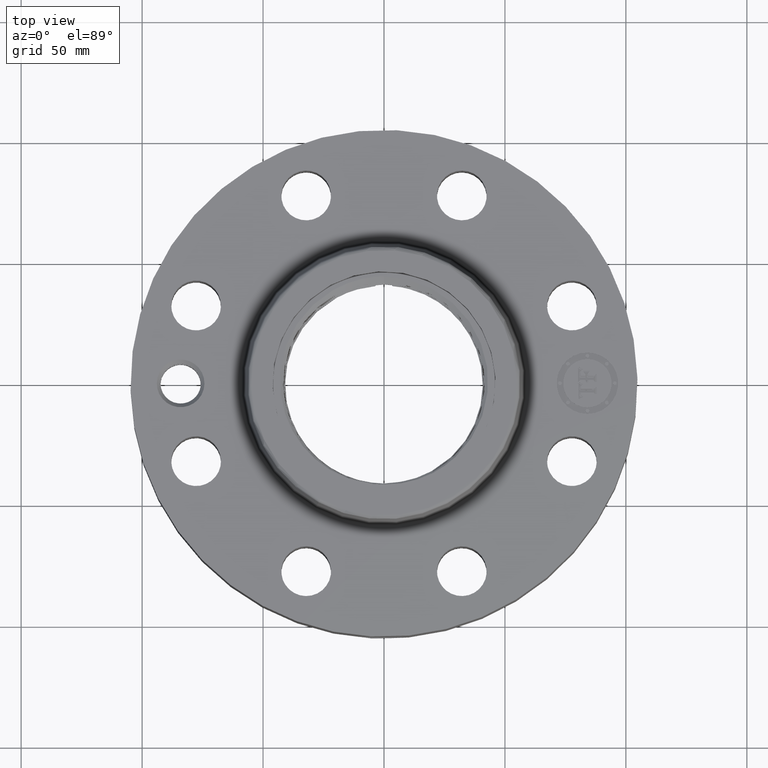
[diagram: clean part render]
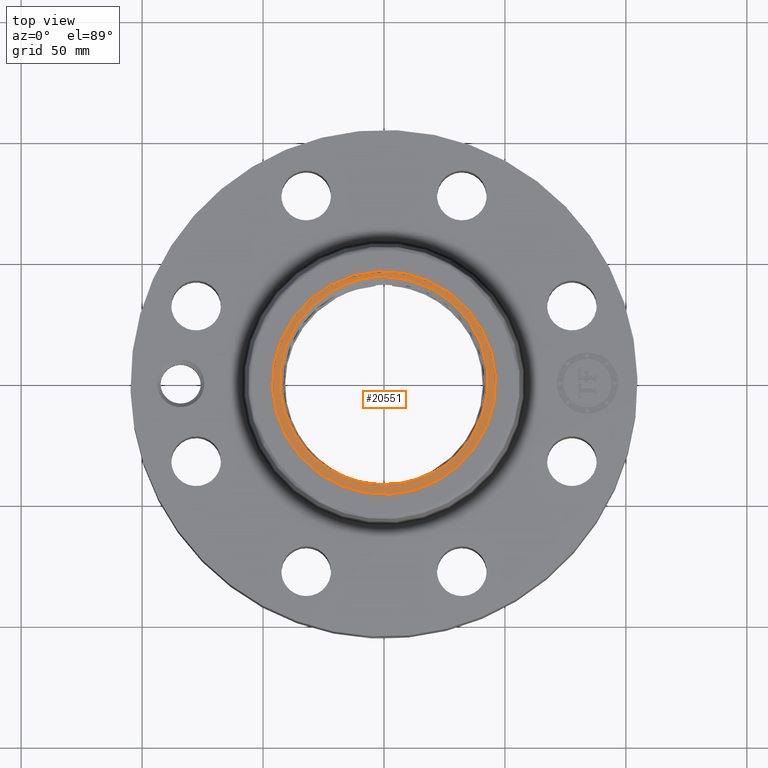
[diagram: same view with one face highlighted and labeled with its STEP entity id]
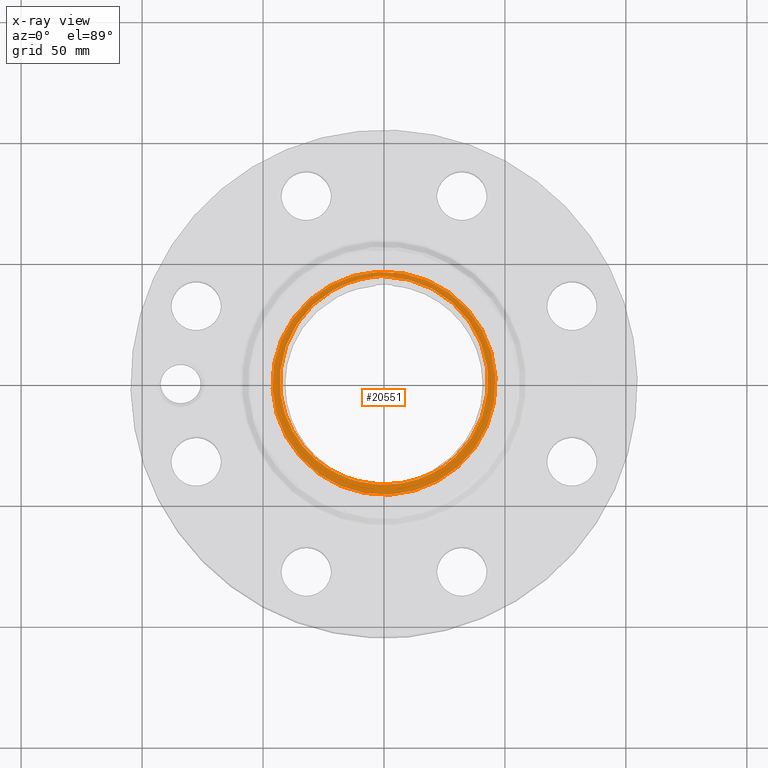
[diagram: x-ray of the same camera — body ghosted, the highlighted face saturated]
A machine part, top view. The second image highlights one B-rep face of the part: STEP entity #20551.
The next image is the same camera in x-ray: the body ghosted, the highlighted face saturated — about 0% of this face is hidden behind the body in this view.
In plain terms, the highlighted planar face has unit normal (0, 0, 1).
Its self-contained STEP definition (entity closure, byte-faithful):
#16266=AXIS2_PLACEMENT_3D('Circle Axis2P3D',#16264,#16265,$) ;
#20483=AXIS2_PLACEMENT_3D('Plane Axis2P3D',#20480,#20481,#20482) ;
#20487=AXIS2_PLACEMENT_3D('Circle Axis2P3D',#20485,#20486,$) ;
#20496=AXIS2_PLACEMENT_3D('Circle Axis2P3D',#20494,#20495,$) ;
#16264=CARTESIAN_POINT('Axis2P3D Location',(0.,0.,1.81000000001)) ;
#16268=CARTESIAN_POINT('Vertex',(-0.194961963049,-1.63393586044,1.81)) ;
#16270=CARTESIAN_POINT('Vertex',(-0.0561136197706,-1.64456919123,1.81000000001)) ;
#16362=CARTESIAN_POINT('Vertex',(-0.829470934367,1.51833945289,1.81000000001)) ;
#16378=CARTESIAN_POINT('Vertex',(-0.13678722871,1.73890267564,1.81000000001)) ;
#16382=CARTESIAN_POINT('Control Point',(-0.13678722871,1.73890267564,1.81000000001)) ;
#16383=CARTESIAN_POINT('Control Point',(-0.319371309236,1.72100230878,1.81000000001)) ;
#16384=CARTESIAN_POINT('Control Point',(-0.499217006857,1.6775120228,1.81000000206)) ;
#16385=CARTESIAN_POINT('Control Point',(-0.670847050204,1.60903129027,1.81000000001)) ;
#16386=CARTESIAN_POINT('Control Point',(-0.829470934367,1.51833945289,1.81000000001)) ;
#16449=CARTESIAN_POINT('Vertex',(0.796675761675,-1.4583093642,1.81000000001)) ;
#16455=CARTESIAN_POINT('Vertex',(-2.22400058097E-006,-1.6465611539,1.81000000001)) ;
#16459=CARTESIAN_POINT('Control Point',(0.796675761675,-1.4583093642,1.81000000001)) ;
#16460=CARTESIAN_POINT('Control Point',(0.612988326037,-1.55434561901,1.81000000001)) ;
#16461=CARTESIAN_POINT('Control Point',(0.413568492538,-1.6196915647,1.8100000001)) ;
#16462=CARTESIAN_POINT('Control Point',(0.206289476697,-1.65036322685,1.81000000001)) ;
#16463=CARTESIAN_POINT('Control Point',(-2.22400058097E-006,-1.6465611539,1.81000000001)) ;
#16492=CARTESIAN_POINT('Control Point',(-2.224000579E-006,-1.6465611539,1.81000000001)) ;
#16493=CARTESIAN_POINT('Control Point',(-0.0187181004689,-1.64621620969,1.81000000001)) ;
#16494=CARTESIAN_POINT('Control Point',(-0.0374264603945,-1.64555202021,1.81000000001)) ;
#16495=CARTESIAN_POINT('Control Point',(-0.056113619005,-1.64456919264,1.81000000001)) ;
#20458=CARTESIAN_POINT('Control Point',(-0.829470934367,1.51833945289,1.81000000001)) ;
#20459=CARTESIAN_POINT('Control Point',(-1.06639031619,1.38288284057,1.81000000001)) ;
#20460=CARTESIAN_POINT('Control Point',(-1.2761445505,1.20096168998,1.81000000001)) ;
#20461=CARTESIAN_POINT('Control Point',(-1.44642698033,0.979733273924,1.81000000001)) ;
#20462=CARTESIAN_POINT('Control Point',(-1.65174050857,0.560494746642,1.81000000001)) ;
#20463=CARTESIAN_POINT('Control Point',(-1.70852808829,0.103336645492,1.81000000001)) ;
#20464=CARTESIAN_POINT('Control Point',(-1.70583983878,-0.0847126953077,1.81000000001)) ;
#20465=CARTESIAN_POINT('Control Point',(-1.65684462365,-0.404237197603,1.81000000001)) ;
#20466=CARTESIAN_POINT('Control Point',(-1.53542121015,-0.701241256711,1.81000000001)) ;
#20467=CARTESIAN_POINT('Control Point',(-1.47193828024,-0.820690122916,1.81)) ;
#20468=CARTESIAN_POINT('Control Point',(-1.25126506793,-1.15106605528,1.81000000001)) ;
#20469=CARTESIAN_POINT('Control Point',(-0.9413522449,-1.40639267928,1.81)) ;
#20470=CARTESIAN_POINT('Control Point',(-0.706153688775,-1.53223738599,1.8100000002)) ;
#20471=CARTESIAN_POINT('Control Point',(-0.452848193671,-1.60848913925,1.81000000003)) ;
#20472=CARTESIAN_POINT('Control Point',(-0.194961961606,-1.63393588575,1.81000000001)) ;
#20480=CARTESIAN_POINT('Axis2P3D Location',(7.36069123413E-016,-4.96540691328E-016,1.81000000001)) ;
#20485=CARTESIAN_POINT('Axis2P3D Location',(0.,0.,1.81000000001)) ;
#20489=CARTESIAN_POINT('Vertex',(-0.87015735257,1.59281234984,1.81000000001)) ;
#20491=CARTESIAN_POINT('Vertex',(0.87015735257,-1.59281234984,1.81000000001)) ;
#20494=CARTESIAN_POINT('Axis2P3D Location',(0.,0.,1.81000000001)) ;
#20504=CARTESIAN_POINT('Control Point',(-0.13678722871,1.73890267564,1.81000000001)) ;
#20505=CARTESIAN_POINT('Control Point',(-0.109458202439,1.7405747304,1.81000000001)) ;
#20506=CARTESIAN_POINT('Control Point',(-0.0821007535331,1.74171019988,1.81000000001)) ;
#20507=CARTESIAN_POINT('Control Point',(-0.0547289307574,1.74230832592,1.81000000001)) ;
#20508=CARTESIAN_POINT('Control Point',(-0.0273568229636,1.74236890253,1.81000000001)) ;
#20509=CARTESIAN_POINT('Control Point',(1.47383328783E-006,1.74189228094,1.81000000001)) ;
#20510=CARTESIAN_POINT('Vertex',(1.47383328792E-006,1.74189228094,1.81000000001)) ;
#20514=CARTESIAN_POINT('Control Point',(1.47383328796E-006,1.74189228094,1.81000000001)) ;
#20515=CARTESIAN_POINT('Control Point',(0.136920631268,1.73950694874,1.81000000001)) ;
#20516=CARTESIAN_POINT('Control Point',(0.273493776678,1.72366654045,1.81000000001)) ;
#20517=CARTESIAN_POINT('Control Point',(0.407916061021,1.69442464961,1.81000000001)) ;
#20518=CARTESIAN_POINT('Control Point',(0.66904848855,1.60992354919,1.81000000001)) ;
#20519=CARTESIAN_POINT('Control Point',(0.908110467543,1.47634479062,1.81000000001)) ;
#20520=CARTESIAN_POINT('Control Point',(1.02056623263,1.39797639224,1.81000000001)) ;
#20521=CARTESIAN_POINT('Control Point',(1.22835449747,1.22021097323,1.81000000001)) ;
#20522=CARTESIAN_POINT('Control Point',(1.39698893523,1.00557372318,1.81000000001)) ;
#20523=CARTESIAN_POINT('Control Point',(1.47032957825,0.890288333666,1.81000000001)) ;
#20524=CARTESIAN_POINT('Control Point',(1.59302962829,0.647002829865,1.81000000001)) ;
#20525=CARTESIAN_POINT('Control Point',(1.66539294493,0.384673686553,1.81000000001)) ;
#20526=CARTESIAN_POINT('Control Point',(1.68834854283,0.250460648103,1.81000000001)) ;
#20527=CARTESIAN_POINT('Control Point',(1.70131672213,0.0641377390592,1.81000000001)) ;
#20528=CARTESIAN_POINT('Control Point',(1.68884093805,-0.121274440494,1.81000000001)) ;
#20529=CARTESIAN_POINT('Control Point',(1.68355250931,-0.171653828551,1.81000000001)) ;
#20530=CARTESIAN_POINT('Control Point',(1.66683566131,-0.288580432947,1.81000000001)) ;
#20531=CARTESIAN_POINT('Control Point',(1.63999666546,-0.403586111194,1.81000000001)) ;
#20532=CARTESIAN_POINT('Control Point',(1.62139791972,-0.46844693772,1.81000000001)) ;
#20533=CARTESIAN_POINT('Control Point',(1.55601180478,-0.659816999175,1.81000000001)) ;
#20534=CARTESIAN_POINT('Control Point',(1.46260830676,-0.839719880352,1.81000000001)) ;
#20535=CARTESIAN_POINT('Control Point',(1.38856391158,-0.952902964194,1.81000000001)) ;
#20536=CARTESIAN_POINT('Control Point',(1.23849429005,-1.13854877215,1.81000000001)) ;
#20537=CARTESIAN_POINT('Control Point',(1.05872028593,-1.29430962794,1.81000000001)) ;
#20538=CARTESIAN_POINT('Control Point',(0.975492433996,-1.35582367301,1.81000000001)) ;
#20539=CARTESIAN_POINT('Control Point',(0.887898752777,-1.41061576774,1.81000000001)) ;
#20540=CARTESIAN_POINT('Control Point',(0.796675761675,-1.4583093642,1.81000000001)) ;
#16265=DIRECTION('Axis2P3D Direction',(0.,0.,0.0393700787402)) ;
#20481=DIRECTION('Axis2P3D Direction',(0.,0.,0.0393700787402)) ;
#20482=DIRECTION('Axis2P3D XDirection',(0.0393700787402,0.,0.)) ;
#20486=DIRECTION('Axis2P3D Direction',(0.,0.,0.0393700787402)) ;
#20495=DIRECTION('Axis2P3D Direction',(0.,0.,0.0393700787402)) ;
#20500=ORIENTED_EDGE('',*,*,#20493,.T.) ;
#20501=ORIENTED_EDGE('',*,*,#20498,.T.) ;
#20543=ORIENTED_EDGE('',*,*,#16272,.F.) ;
#20544=ORIENTED_EDGE('',*,*,#20473,.F.) ;
#20545=ORIENTED_EDGE('',*,*,#16387,.F.) ;
#20546=ORIENTED_EDGE('',*,*,#20512,.T.) ;
#20547=ORIENTED_EDGE('',*,*,#20541,.T.) ;
#20548=ORIENTED_EDGE('',*,*,#16464,.T.) ;
#20549=ORIENTED_EDGE('',*,*,#16496,.T.) ;
#20550=FACE_BOUND('',#20542,.T.) ;
#20551=ADVANCED_FACE('PartBody',(#20502,#20550),#20484,.T.) ;
#16381=B_SPLINE_CURVE_WITH_KNOTS('',4,(#16382,#16383,#16384,#16385,#16386),.UNSPECIFIED.,.F.,.U.,(5,5),(0.,25.9928921115),.UNSPECIFIED.) ;
#16458=B_SPLINE_CURVE_WITH_KNOTS('',4,(#16459,#16460,#16461,#16462,#16463),.UNSPECIFIED.,.F.,.U.,(5,5),(0.,30.069044026),.UNSPECIFIED.) ;
#16491=B_SPLINE_CURVE_WITH_KNOTS('',3,(#16492,#16493,#16494,#16495),.UNSPECIFIED.,.F.,.U.,(4,4),(0.,2.04601728382),.UNSPECIFIED.) ;
#20457=B_SPLINE_CURVE_WITH_KNOTS('',5,(#20458,#20459,#20460,#20461,#20462,#20463,#20464,#20465,#20466,#20467,#20468,#20469,#20470,#20471,#20472),.UNSPECIFIED.,.F.,.U.,(6,3,3,3,6),(0.,48.5284731794,81.9026469837,106.205437634,153.490078408),.UNSPECIFIED.) ;
#20503=B_SPLINE_CURVE_WITH_KNOTS('',5,(#20504,#20505,#20506,#20507,#20508,#20509),.UNSPECIFIED.,.F.,.U.,(6,6),(0.,4.84905025994),.UNSPECIFIED.) ;
#20513=B_SPLINE_CURVE_WITH_KNOTS('',5,(#20514,#20515,#20516,#20517,#20518,#20519,#20520,#20521,#20522,#20523,#20524,#20525,#20526,#20527,#20528,#20529,#20530,#20531,#20532,#20533,#20534,#20535,#20536,#20537,#20538,#20539,#20540),.UNSPECIFIED.,.F.,.U.,(6,3,3,3,3,3,3,3,6),(0.,24.2678804488,48.5563633519,72.8557004676,97.1321311483,106.229619041,118.355365454,142.607130036,161.27326884),.UNSPECIFIED.) ;
#16267=CIRCLE('generated circle',#16266,1.64552622679) ;
#20488=CIRCLE('generated circle',#20487,1.81500000001) ;
#20497=CIRCLE('generated circle',#20496,1.81500000001) ;
#16272=EDGE_CURVE('',#16269,#16271,#16267,.T.) ;
#16387=EDGE_CURVE('',#16379,#16363,#16381,.T.) ;
#16464=EDGE_CURVE('',#16450,#16456,#16458,.T.) ;
#16496=EDGE_CURVE('',#16456,#16271,#16491,.T.) ;
#20473=EDGE_CURVE('',#16363,#16269,#20457,.T.) ;
#20493=EDGE_CURVE('',#20490,#20492,#20488,.T.) ;
#20498=EDGE_CURVE('',#20492,#20490,#20497,.T.) ;
#20512=EDGE_CURVE('',#16379,#20511,#20503,.T.) ;
#20541=EDGE_CURVE('',#20511,#16450,#20513,.T.) ;
#20499=EDGE_LOOP('',(#20500,#20501)) ;
#20542=EDGE_LOOP('',(#20543,#20544,#20545,#20546,#20547,#20548,#20549)) ;
#20502=FACE_OUTER_BOUND('',#20499,.T.) ;
#20484=PLANE('',#20483) ;
#16269=VERTEX_POINT('',#16268) ;
#16271=VERTEX_POINT('',#16270) ;
#16363=VERTEX_POINT('',#16362) ;
#16379=VERTEX_POINT('',#16378) ;
#16450=VERTEX_POINT('',#16449) ;
#16456=VERTEX_POINT('',#16455) ;
#20490=VERTEX_POINT('',#20489) ;
#20492=VERTEX_POINT('',#20491) ;
#20511=VERTEX_POINT('',#20510) ;